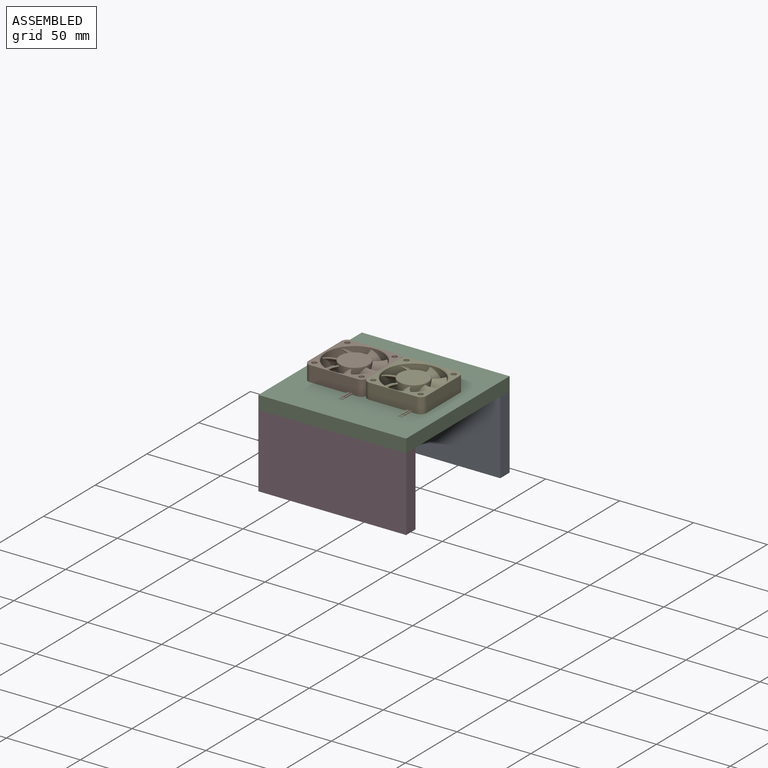
[diagram: assembled view]
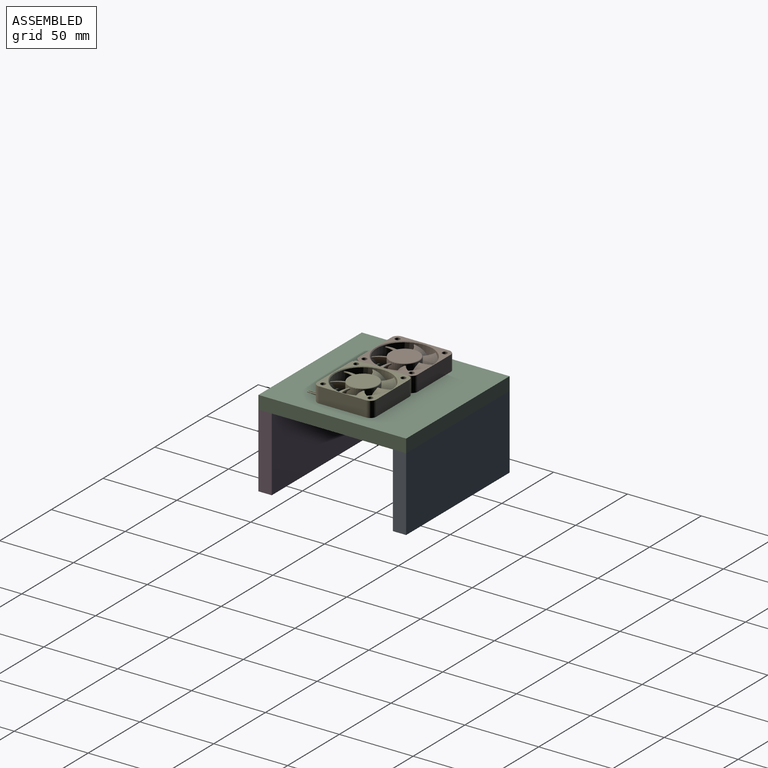
[diagram: assembled view, second angle]
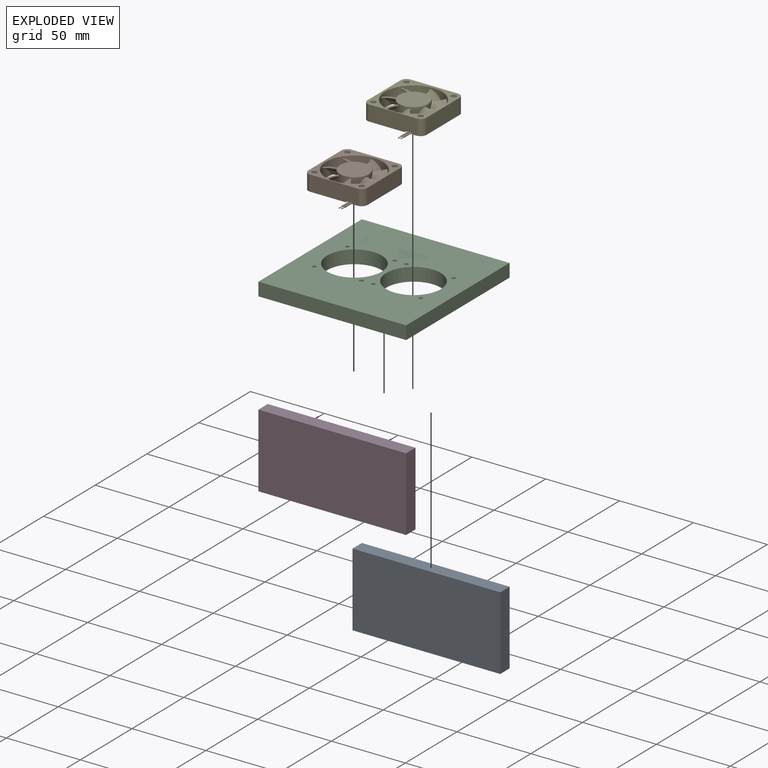
[diagram: exploded view]
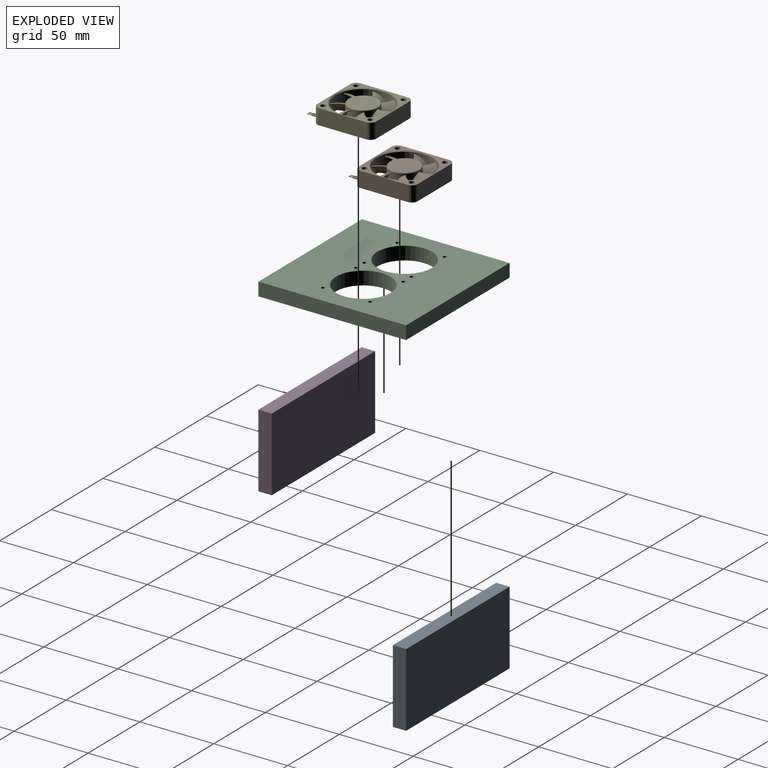
[diagram: exploded view, second angle]
ASSEMBLY  parts=5 mates=4
PART A: 6 faces, bbox 100x9x50 mm
  f0: plane 50x9mm, normal (-1,0,0), area 450mm2, adj f1,f3,f4,f5
  f1: plane 100x50mm, normal (0,-1,0), area 5000mm2, adj f0,f2,f4,f5
  f2: plane 50x9mm, normal (1,0,0), area 450mm2, adj f1,f3,f4,f5
  f3: plane 100x50mm, normal (0,1,0), area 5000mm2, adj f0,f2,f4,f5
  f4: plane 100x9mm, normal (0,0,1), area 900mm2, adj f0,f1,f2,f3
  f5: plane 100x9mm, normal (0,0,-1), area 900mm2, adj f0,f1,f2,f3
PART B: 87 faces, bbox 49.6x40.4x10.5 mm
  f0: plane 1.25x0.72mm, normal (-0.87,0.5,0), area 0.5mm2, adj f59,f66,f70,f79
  f1: plane 3.91x2.99mm, normal (0,0,-1), area 3.2mm2, adj f5,f42,f75,f79
  f2: plane 7.42x4.08mm, normal (0,0,1), area 3.8mm2, adj f5,f37,f75,f76,f77,f79,f80,f81
  f3: plane 1.71x1.11mm, normal (0,0,-1), area 1.7mm2, adj f37,f72,f76,f77,f80,f81
  f4: plane 4.65x4mm, normal (0,0,-1), area 9mm2, adj f42,f63,f64,f65,f75
  f5: plane 0.66x0.41mm, normal (-0.87,0.5,0), area 0.2mm2, adj f1,f2,f75,f79
  f6: plane 8.5x4.38mm, normal (0,0,1), area 7.7mm2, adj f8,f37,f65,f69,f75,f76,f77
  f7: plane 2.64x0.83mm, normal (0,0,-1), area 1.5mm2, adj f8,f37,f71,f72,f76,f77
  f8: plane 2.64x0.4mm, normal (0,1,0), area 1.1mm2, adj f6,f7,f37,f69
  f9: cone r=19mm half-angle=45deg, axis (0,0,1), area 24.1mm2, adj f20,f31,f42,f62
  f10: cone r=19mm half-angle=45deg, axis (0,0,1), area 25mm2, adj f20,f42,f47,f63
  f11: plane 14x10.35mm, normal (0,0,-1), area 25.6mm2, adj f19,f29,f30,f31,f32,f42
  f12: bspline ~12.63x9.45mm, area 222.2mm2, adj f19,f28
  f13: bspline ~15.36x10.54mm, area 211.8mm2, adj f19,f27
  f14: bspline ~11.92x11.51mm, area 223.6mm2, adj f19,f26
  f15: bspline ~14.7x10.2mm, area 222.2mm2, adj f19,f25
  f16: bspline ~13.61x10.32mm, area 222.2mm2, adj f19,f24
  f17: bspline ~13.71x9.46mm, area 222.2mm2, adj f19,f23
  f18: bspline ~14.72x10.14mm, area 222.2mm2, adj f19,f22
  f19: cylinder r=10mm len=20mm, axis (0,0,-1), area 524.5mm2, adj f11,f12,f13,f14,f15,f16,f17,f18
  f20: plane 40x40mm, normal (0,0,1), area 446.5mm2, adj f9,f10,f19,f29,f30,f31,f32,f34
  f21: plane 19x19mm, normal (0,0,-1), area 283.5mm2, adj f58
  f22: cylinder r=18.5mm len=8.3mm, axis (0,0,1), area 12.7mm2, adj f18
  f23: cylinder r=18.5mm len=9.76mm, axis (0,0,1), area 12.7mm2, adj f17
  f24: cylinder r=18.5mm len=9.4mm, axis (0,0,1), area 12.7mm2, adj f16
  f25: cylinder r=18.5mm len=8.88mm, axis (0,0,1), area 12.7mm2, adj f15
  f26: cylinder r=18.5mm len=10.02mm, axis (0,0,1), area 12.7mm2, adj f14
  f27: cylinder r=18.5mm len=8mm, axis (0,0,1), area 12.7mm2, adj f13
  f28: cylinder r=18.5mm len=10.14mm, axis (0,0,1), area 12.7mm2, adj f12
  f29: plane 13.71x7.92mm, normal (-0.87,0.5,0), area 7.9mm2, adj f11,f19,f20,f30
  f30: cylinder r=0.5mm len=0.75mm, axis (0,0,1), area 0.3mm2, adj f11,f20,f29,f44
  f31: plane 9.04x5.22mm, normal (0.87,-0.5,0), area 5.1mm2, adj f9,f11,f20,f32
  f32: cylinder r=0.5mm len=0.75mm, axis (0,0,1), area 0.6mm2, adj f11,f19,f20,f31
  f33: plane 40x40mm, normal (0,0,-1), area 354.3mm2, adj f34,f35,f36,f37,f38,f39,f40,f41
  f34: cylinder r=4mm len=10.5mm, axis (0,0,-1), area 66mm2, adj f20,f33,f35,f41
  f35: plane 32x10.5mm, normal (0,-1,0), area 336mm2, adj f20,f33,f34,f36
  f36: cylinder r=4mm len=10.5mm, axis (0,0,-1), area 66mm2, adj f20,f33,f35,f37
  f37: plane 32x10.5mm, normal (1,0,0), area 332.9mm2, adj f2,f3,f6,f7,f8,f20,f33,f36
  f38: cylinder r=4mm len=10.5mm, axis (0,0,-1), area 66mm2, adj f20,f33,f37,f39
  f39: plane 32x10.5mm, normal (0,1,0), area 336mm2, adj f20,f33,f38,f40
  f40: cylinder r=4mm len=10.5mm, axis (0,0,-1), area 66mm2, adj f20,f33,f39,f41
  f41: plane 32x10.5mm, normal (-1,0,0), area 336mm2, adj f20,f33,f34,f40
  f42: cylinder r=19mm len=38mm, axis (0,0,-1), area 1130.2mm2, adj f1,f4,f9,f10,f11,f43,f44,f45
  f43: cone r=19.5mm half-angle=45deg, axis (0,0,-1), area 85.5mm2, adj f33,f42
  f44: cone r=19mm half-angle=45deg, axis (0,0,1), area 26.6mm2, adj f20,f30,f42,f48
  f45: plane 17.23x2.94mm, normal (0,0,-1), area 25.6mm2, adj f19,f42,f46,f47,f48,f49
  f46: plane 15.84x0.5mm, normal (0,-1,0), area 7.9mm2, adj f19,f20,f45,f47
  f47: cylinder r=0.5mm len=0.78mm, axis (0,0,1), area 0.3mm2, adj f10,f20,f45,f46
  f48: plane 10.44x0.5mm, normal (0,1,0), area 5.1mm2, adj f20,f44,f45,f49
  f49: cylinder r=0.5mm len=0.86mm, axis (0,0,1), area 0.6mm2, adj f19,f20,f45,f48
  f50: cylinder r=9.6mm len=19.2mm, axis (0,0,1), area 6mm2, adj f20,f51
  f51: plane 19.2x19.2mm, normal (0,0,1), area 11.9mm2, adj f50,f52
  f52: cylinder r=9.4mm len=18.8mm, axis (0,0,1), area 5.9mm2, adj f51,f53
  f53: plane 18.8x18.8mm, normal (0,0,1), area 277.6mm2, adj f52
  f54: cylinder r=1.72mm len=10.5mm, axis (0,0,1), area 113.8mm2, adj f20,f33
  f55: cylinder r=1.72mm len=10.5mm, axis (0,0,1), area 113.8mm2, adj f20,f33
  f56: cylinder r=1.72mm len=10.5mm, axis (0,0,1), area 113.8mm2, adj f20,f33
  f57: cylinder r=1.72mm len=10.5mm, axis (0,0,1), area 113.8mm2, adj f20,f33
  f58: torus R=9.5mm, axis (0,0,1), area 48.5mm2, adj f19,f21
  f59: plane 11.14x8.33mm, normal (0,0,-1), area 25.4mm2, adj f0,f19,f42,f60,f61,f62,f66,f79
  f60: plane 5.98x5.02mm, normal (0.77,0.64,0), area 7.8mm2, adj f19,f20,f59,f61
  f61: plane 3.08x1.78mm, normal (0.5,0.87,0), area 3.6mm2, adj f20,f59,f60,f62
  f62: cylinder r=0.6mm len=1mm, axis (0,0,1), area 0.5mm2, adj f9,f20,f42,f59,f61
  f63: cylinder r=0.6mm len=1mm, axis (0,0,1), area 0.4mm2, adj f4,f10,f20,f42,f64
  f64: plane 3.18x1.83mm, normal (-0.5,-0.87,0), area 3.7mm2, adj f4,f20,f63,f65
  f65: plane 2.03x1.18mm, normal (-0.87,0.5,0), area 1.5mm2, adj f4,f6,f20,f64,f69,f75
  f66: plane 4.68x3.93mm, normal (-0.77,-0.64,0), area 6.1mm2, adj f0,f19,f20,f59,f67
  f67: plane 4.39x2.54mm, normal (-0.5,-0.87,0), area 3mm2, adj f20,f66,f68,f70
  f68: plane 1.71x0.6mm, normal (0,-1,0), area 1mm2, adj f20,f37,f67,f70
  f69: plane 5.86x3.39mm, normal (0.5,0.87,0), area 4.1mm2, adj f6,f8,f20,f65,f71
  f70: plane 6.73x4.37mm, normal (0,0,1), area 11mm2, adj f0,f37,f67,f68,f79,f80,f81
  f71: cylinder r=0.71mm len=0.68mm, axis (0,0,1), area 0.2mm2, adj f7,f20,f69,f72
  f72: plane 3.34x0.96mm, normal (-0.96,0.28,0), area 0.6mm2, adj f3,f7,f20,f71,f73,f74,f76,f80
  f73: plane 1x0.2mm, normal (0,1,0), area 0.2mm2, adj f20,f37,f72,f74
  f74: plane 1.25x0.89mm, normal (0,0,-1), area 1mm2, adj f37,f72,f73,f80,f81
  f75: cylinder r=0.5mm len=9.55mm, axis (0.83,-0.55,0), area 27.2mm2, adj f1,f2,f4,f5,f6,f19,f42,f65
  f76: torus R=3mm, axis (0,0,1), area 2.3mm2, adj f2,f3,f6,f7,f72,f75,f77
  f77: cylinder r=0.5mm len=7.51mm, axis (1,0,0), area 21.4mm2, adj f2,f3,f6,f7,f37,f76,f78
  f78: plane 1x1mm, normal (1,0,0), area 0.5mm2, adj f77,f85
  f79: cylinder r=0.5mm len=8.92mm, axis (0.83,-0.55,0), area 26mm2, adj f0,f1,f2,f5,f19,f42,f59,f70
  f80: torus R=3mm, axis (0,0,1), area 2.5mm2, adj f2,f3,f70,f72,f74,f79,f81
  f81: cylinder r=0.5mm len=7.51mm, axis (1,0,0), area 21.4mm2, adj f2,f3,f37,f70,f74,f80,f82
  f82: plane 1x1mm, normal (1,0,0), area 0.5mm2, adj f81,f83
  f83: cylinder r=0.3mm len=3mm, axis (-1,0,0), area 5.7mm2, adj f82,f84
  f84: plane 0.6x0.6mm, normal (1,0,0), area 0.3mm2, adj f83
  f85: cylinder r=0.3mm len=3mm, axis (-1,0,0), area 5.7mm2, adj f78,f86
  f86: plane 0.6x0.6mm, normal (1,0,0), area 0.3mm2, adj f85
PART C: 16 faces, bbox 100x100x9 mm
  f0: plane 100x9mm, normal (0,1,0), area 900mm2, adj f1,f13,f14,f15
  f1: plane 100x9mm, normal (-1,0,0), area 900mm2, adj f0,f2,f14,f15
  f2: plane 100x9mm, normal (0,-1,0), area 900mm2, adj f1,f13,f14,f15
  f3: cylinder r=18.5mm len=37mm, axis (0,0,-1), area 1046.2mm2, adj f14,f15
  f4: cylinder r=18.5mm len=37mm, axis (0,0,-1), area 1046.2mm2, adj f14,f15
  f5: cylinder r=1.25mm len=9mm, axis (0,0,-1), area 70.7mm2, adj f14,f15
  f6: cylinder r=1.25mm len=9mm, axis (0,0,-1), area 70.7mm2, adj f14,f15
  f7: cylinder r=1.25mm len=9mm, axis (0,0,-1), area 70.7mm2, adj f14,f15
  f8: cylinder r=1.25mm len=9mm, axis (0,0,-1), area 70.7mm2, adj f14,f15
  f9: cylinder r=1.25mm len=9mm, axis (0,0,-1), area 70.7mm2, adj f14,f15
  f10: cylinder r=1.25mm len=9mm, axis (0,0,-1), area 70.7mm2, adj f14,f15
  f11: cylinder r=1.25mm len=9mm, axis (0,0,-1), area 70.7mm2, adj f14,f15
  f12: cylinder r=1.25mm len=9mm, axis (0,0,-1), area 70.7mm2, adj f14,f15
  f13: plane 100x9mm, normal (1,0,0), area 900mm2, adj f0,f2,f14,f15
  f14: plane 100x100mm, normal (0,0,1), area 7810.3mm2, adj f0,f1,f2,f3,f4,f5,f6,f7
  f15: plane 100x100mm, normal (0,0,-1), area 7810.3mm2, adj f0,f1,f2,f3,f4,f5,f6,f7
PART D: same geometry as A
PART E: same geometry as B
PLACE A t=(60.92,37.23,3.09)mm
PLACE B rot(axis=(0.71,-0.71,0),180deg) t=(-90.88,-119.34,-56.66)mm
PLACE C t=(60.92,37.23,3.09)mm
PLACE D t=(60.92,-53.77,3.09)mm
PLACE E rot(axis=(0.71,-0.71,0),180deg) t=(-50.88,-119.34,-56.66)mm
MATE fastened E.f36 <-> C.f12  axis (0,0,-1) through (-34.88,-135.34,-61.91)mm
MATE fastened B.f38 <-> C.f6  axis (0,0,-1) through (-106.88,-135.34,-61.91)mm
MATE fastened D.f4 <-> C.f15  axis (0,0,1) through (-20.88,-169.34,-70.91)mm
MATE fastened C.f15 <-> A.f4  axis (0,0,-1) through (-20.88,-69.34,-70.91)mm
